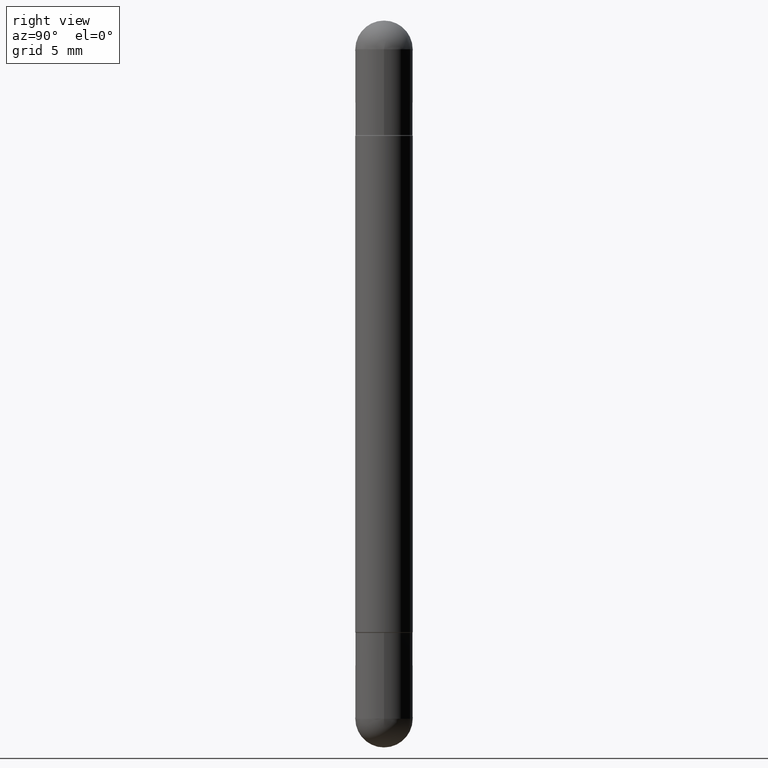
[diagram: clean part render]
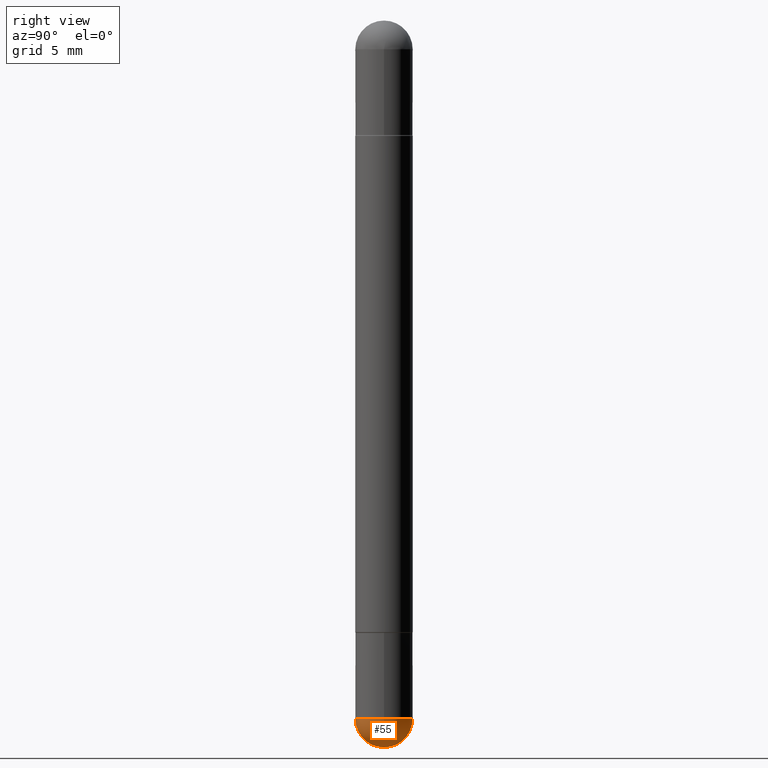
[diagram: same view with one face highlighted and labeled with its STEP entity id]
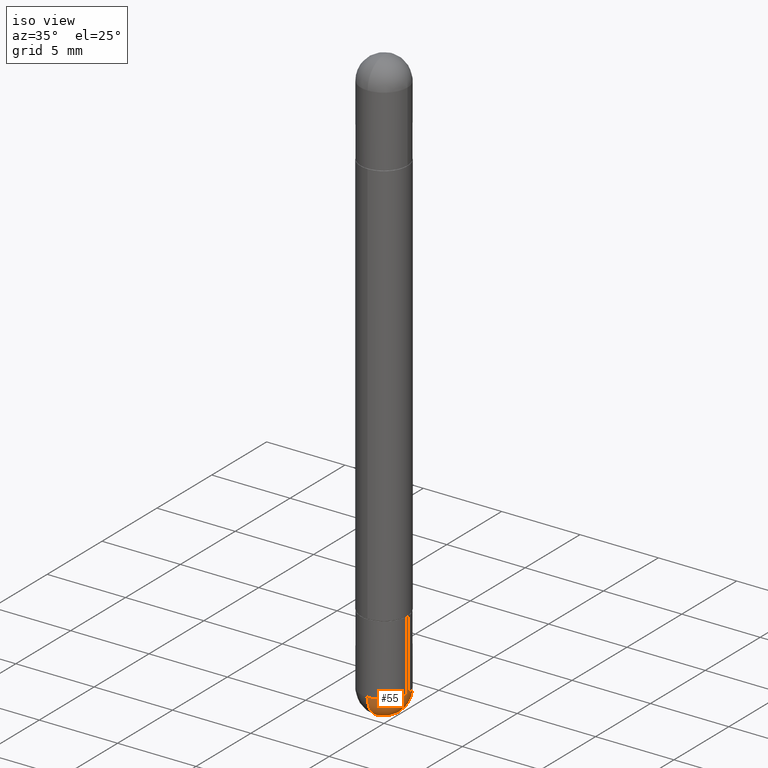
[diagram: same view with one face highlighted and labeled with its STEP entity id]
A machine part, right view. The second image highlights one B-rep face of the part: STEP entity #55.
A second angle (iso view) of the same face is appended — the face is thin or edge-on in the first view.
In plain terms, the highlighted spherical surface has radius 1.4999 mm.
Its self-contained STEP definition (entity closure, byte-faithful):
#2 = CIRCLE ( 'NONE', #788, 0.05905000000000001914 ) ;
#13 = ORIENTED_EDGE ( 'NONE', *, *, #378, .T. ) ;
#33 = DIRECTION ( 'NONE',  ( 1.000000000000000000, -6.982962677686265922E-15, 4.883557194083112340E-29 ) ) ;
#55 = ADVANCED_FACE ( 'NONE', ( #818 ), #522, .T. ) ;
#56 = CARTESIAN_POINT ( 'NONE',  ( 3.514260947928350449E-29, -5.017433257984542594E-15, -1.437049999999999939 ) ) ;
#60 = DIRECTION ( 'NONE',  ( 6.982962677686266711E-15, 1.000000000000000000, 0.000000000000000000 ) ) ;
#72 = VERTEX_POINT ( 'NONE', #349 ) ;
#85 = DIRECTION ( 'NONE',  ( -1.000000000000000000, 7.105427357601001070E-15, -4.926315508542082329E-29 ) ) ;
#102 = DIRECTION ( 'NONE',  ( 1.000000000000000000, -6.982962677686270655E-15, 0.000000000000000000 ) ) ;
#138 = ORIENTED_EDGE ( 'NONE', *, *, #163, .F. ) ;
#163 = EDGE_CURVE ( 'NONE', #519, #424, #689, .T. ) ;
#210 = DIRECTION ( 'NONE',  ( -7.105427357601001070E-15, -1.000000000000000000, 0.000000000000000000 ) ) ;
#295 = EDGE_CURVE ( 'NONE', #424, #352, #2, .T. ) ;
#333 = ORIENTED_EDGE ( 'NONE', *, *, #477, .F. ) ;
#349 = CARTESIAN_POINT ( 'NONE',  ( 4.123439461174084467E-16, 0.05904999999999487742, -1.437050000000000161 ) ) ;
#352 = VERTEX_POINT ( 'NONE', #363 ) ;
#358 = DIRECTION ( 'NONE',  ( -1.000000000000000000, 6.982962677686265922E-15, -4.883557194083112340E-29 ) ) ;
#362 = CARTESIAN_POINT ( 'NONE',  ( 3.183141170014464762E-29, -5.491615626124592102E-15, -1.437049999999999939 ) ) ;
#363 = CARTESIAN_POINT ( 'NONE',  ( 0.05905000000000001914, -5.120519244513884944E-15, -1.437049999999999939 ) ) ;
#378 = EDGE_CURVE ( 'NONE', #519, #72, #603, .T. ) ;
#392 = CARTESIAN_POINT ( 'NONE',  ( 3.330070981488499955E-29, -5.694171829508798064E-15, -1.496100000000000207 ) ) ;
#424 = VERTEX_POINT ( 'NONE', #451 ) ;
#451 = CARTESIAN_POINT ( 'NONE',  ( -4.195754854663065087E-16, -0.05905000000000539678, -1.437049999999999716 ) ) ;
#456 = CARTESIAN_POINT ( 'NONE',  ( 3.183141170014464762E-29, -5.491615626124592102E-15, -1.437049999999999939 ) ) ;
#467 = CARTESIAN_POINT ( 'NONE',  ( 3.183141170014464762E-29, -5.491615626124592102E-15, -1.437049999999999939 ) ) ;
#477 = EDGE_CURVE ( 'NONE', #352, #72, #749, .T. ) ;
#519 = VERTEX_POINT ( 'NONE', #392 ) ;
#522 = SPHERICAL_SURFACE ( 'NONE', #602, 0.05905000000000025506 ) ;
#531 = DIRECTION ( 'NONE',  ( 6.982962677686265922E-15, 1.000000000000000000, -4.626330217890349615E-15 ) ) ;
#534 = DIRECTION ( 'NONE',  ( 1.000000000000000000, -6.982962677686270655E-15, 0.000000000000000000 ) ) ;
#545 = AXIS2_PLACEMENT_3D ( 'NONE', #362, #33, #60 ) ;
#547 = EDGE_LOOP ( 'NONE', ( #138, #13, #333, #573 ) ) ;
#556 = AXIS2_PLACEMENT_3D ( 'NONE', #645, #654, #102 ) ;
#573 = ORIENTED_EDGE ( 'NONE', *, *, #295, .F. ) ;
#602 = AXIS2_PLACEMENT_3D ( 'NONE', #456, #358, #531 ) ;
#603 = CIRCLE ( 'NONE', #545, 0.05905000000000025506 ) ;
#613 = AXIS2_PLACEMENT_3D ( 'NONE', #467, #85, #210 ) ;
#645 = CARTESIAN_POINT ( 'NONE',  ( 3.514260947928350449E-29, -5.017433257984542594E-15, -1.437049999999999939 ) ) ;
#654 = DIRECTION ( 'NONE',  ( -2.445468806185136597E-29, 3.491481338843145583E-15, 1.000000000000000000 ) ) ;
#689 = CIRCLE ( 'NONE', #613, 0.05905000000000025506 ) ;
#741 = DIRECTION ( 'NONE',  ( -2.445468806185136597E-29, 3.491481338843145583E-15, 1.000000000000000000 ) ) ;
#749 = CIRCLE ( 'NONE', #556, 0.05905000000000001914 ) ;
#788 = AXIS2_PLACEMENT_3D ( 'NONE', #56, #741, #534 ) ;
#818 = FACE_OUTER_BOUND ( 'NONE', #547, .T. ) ;